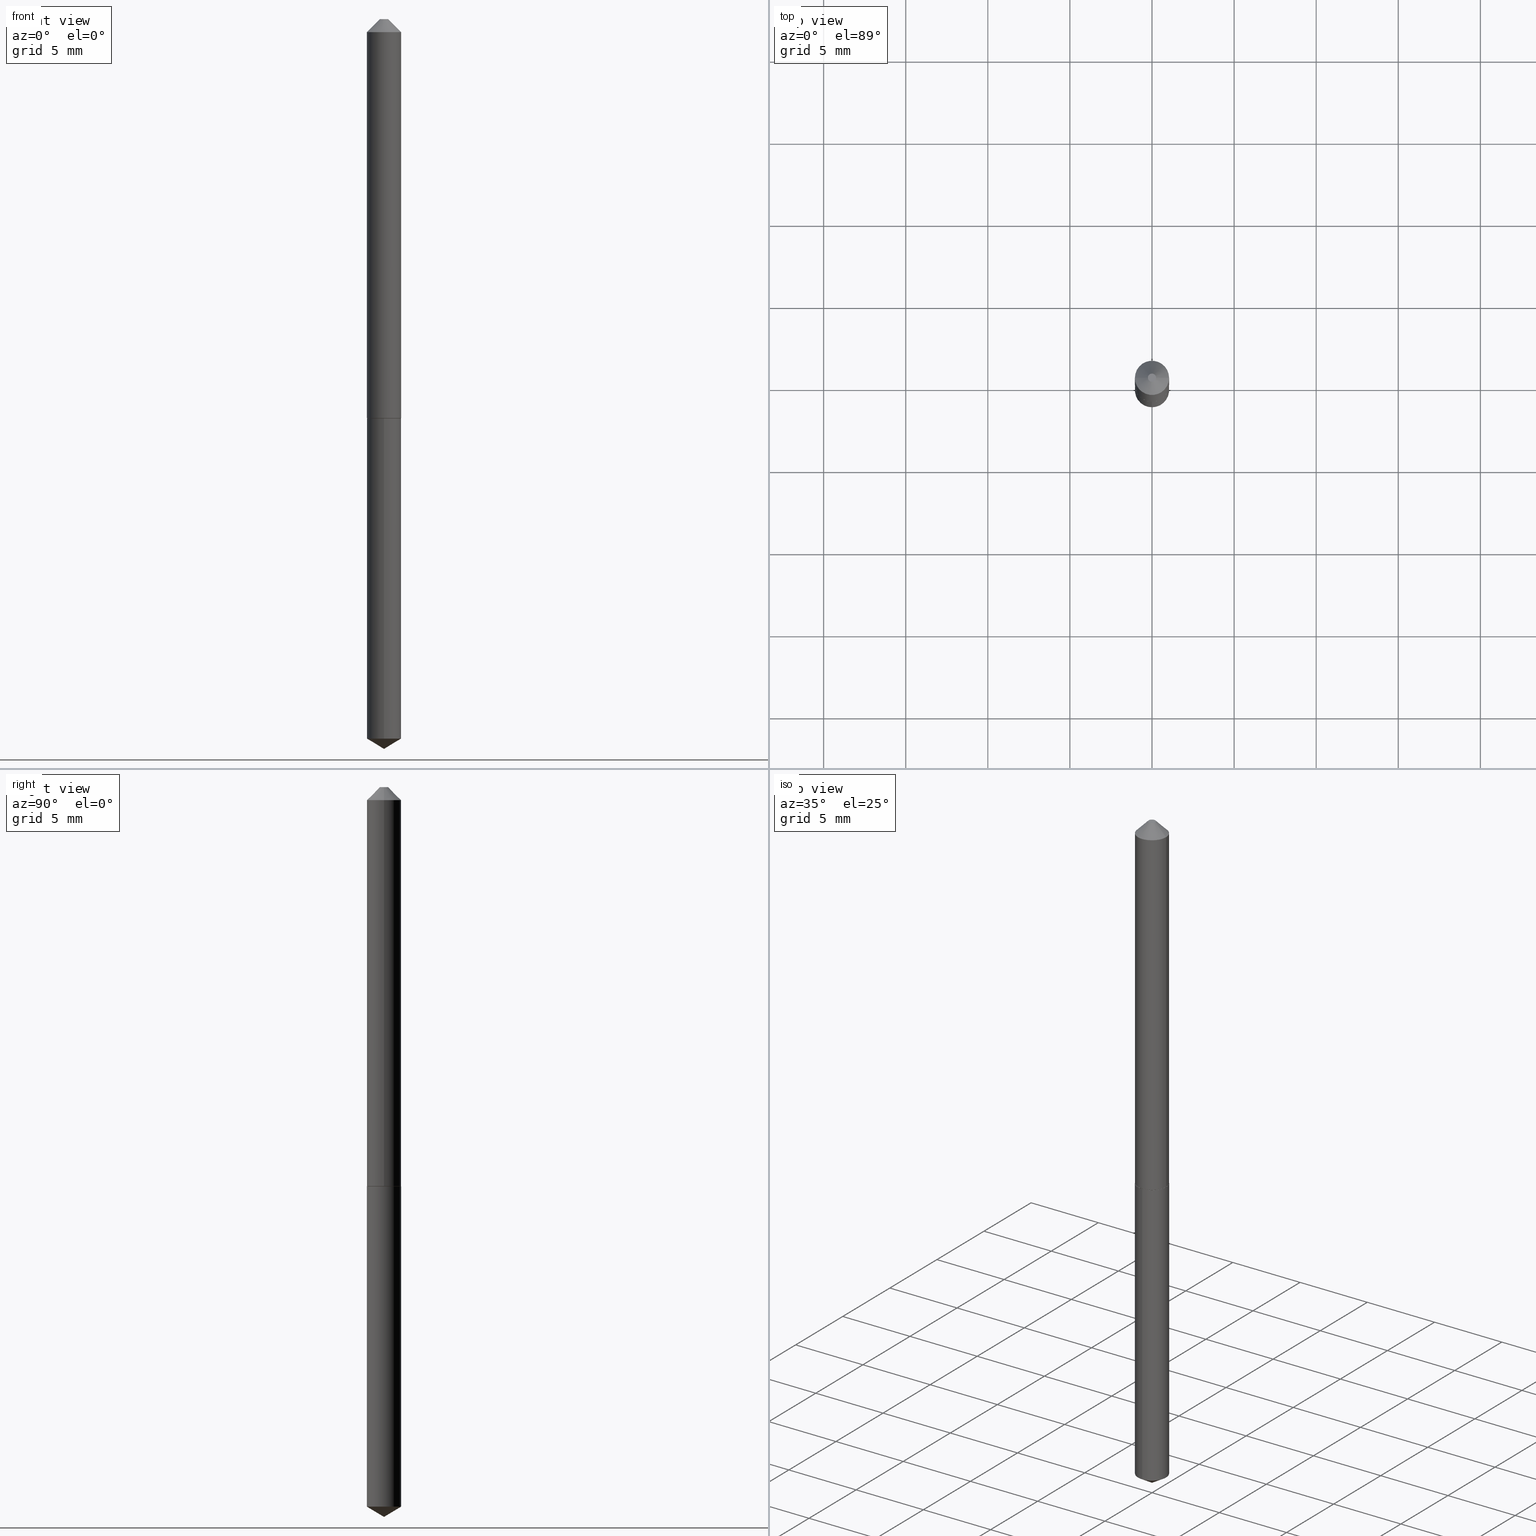
[diagram: canonical four-view strip — front | top / right | iso, engineering-drawing reading convention]
A machine part, canonical four-view strip (front | top / right | iso — engineering-drawing reading convention). The complete STEP part file that produces these views, byte-faithful:
ISO-10303-21;
HEADER;
FILE_DESCRIPTION (( 'STEP AP203' ),
    '1' );
FILE_NAME ('57116.STEP',
    '2024-04-22T22:24:12',
    ( '' ),
    ( '' ),
    'SwSTEP 2.0',
    'SolidWorks 2023',
    '' );
FILE_SCHEMA (( 'CONFIG_CONTROL_DESIGN' ));
ENDSEC;

DATA;
#1 = AXIS2_PLACEMENT_3D ( 'NONE', #53, #20, #314 ) ;
#2 = CALENDAR_DATE ( 2024, 22, 4 ) ;
#3 = ORIENTED_EDGE ( 'NONE', *, *, #105, .F. ) ;
#4 = DIRECTION ( 'NONE',  ( -2.445468806185136597E-29, 3.491481338843145583E-15, 1.000000000000000000 ) ) ;
#5 = EDGE_CURVE ( 'NONE', #100, #299, #18, .T. ) ;
#6 = EDGE_LOOP ( 'NONE', ( #208, #207, #28, #62 ) ) ;
#7 = VECTOR ( 'NONE', #42, 39.37007874015748143 ) ;
#8 = DIRECTION ( 'NONE',  ( 2.445381886799605414E-29, -3.491605812350369964E-15, -1.000000000000000000 ) ) ;
#9 = AXIS2_PLACEMENT_3D ( 'NONE', #56, #89, #271 ) ;
#10 = ORIENTED_EDGE ( 'NONE', *, *, #328, .T. ) ;
#11 = DIRECTION ( 'NONE',  ( 1.000000000000000000, -6.982962677686267499E-15, 0.000000000000000000 ) ) ;
#12 = DIRECTION ( 'NONE',  ( -2.445381886799605414E-29, 3.491605812350370359E-15, 1.000000000000000000 ) ) ;
#13 = CARTESIAN_POINT ( 'NONE',  ( -0.04100000000000007111, 2.913225216616415815E-16, -2.016763387004515092E-30 ) ) ;
#14 = DIRECTION ( 'NONE',  ( 1.000000000000000000, -6.982962677686267499E-15, 4.876158468089368575E-29 ) ) ;
#15 = ADVANCED_FACE ( 'NONE', ( #126 ), #318, .T. ) ;
#16 = DIRECTION ( 'NONE',  ( -2.445381886799605414E-29, 3.491605812350370359E-15, 1.000000000000000000 ) ) ;
#17 = LINE ( 'NONE', #54, #25 ) ;
#18 = CIRCLE ( 'NONE', #165, 0.04100000000000011968 ) ;
#19 = CC_DESIGN_APPROVAL ( #184, ( #118 ) ) ;
#20 = DIRECTION ( 'NONE',  ( -2.445381886799605414E-29, 3.491605812350370359E-15, 1.000000000000000000 ) ) ;
#21 = DIRECTION ( 'NONE',  ( -2.445381886799605414E-29, 3.491605812350370359E-15, 1.000000000000000000 ) ) ;
#22 = EDGE_CURVE ( 'NONE', #359, #30, #193, .T. ) ;
#23 = DIRECTION ( 'NONE',  ( -2.445381886799605414E-29, 3.491605812350370359E-15, 1.000000000000000000 ) ) ;
#24 = AXIS2_PLACEMENT_3D ( 'NONE', #264, #390, #337 ) ;
#25 = VECTOR ( 'NONE', #351, 39.37007874015748143 ) ;
#26 = MECHANICAL_CONTEXT ( 'NONE', #322, 'mechanical' ) ;
#27 = CARTESIAN_POINT ( 'NONE',  ( 7.642090019328601786E-31, -1.091087918388490144E-16, -0.03125000000000020123 ) ) ;
#28 = ORIENTED_EDGE ( 'NONE', *, *, #142, .F. ) ;
#29 =( LENGTH_UNIT ( ) NAMED_UNIT ( * ) SI_UNIT ( $, .METRE. ) );
#30 = VERTEX_POINT ( 'NONE', #352 ) ;
#31 = CIRCLE ( 'NONE', #1, 0.04100000000000000172 ) ;
#32 = PERSON_AND_ORGANIZATION ( #146, #294 ) ;
#33 = ORIENTED_EDGE ( 'NONE', *, *, #226, .F. ) ;
#34 = DATE_AND_TIME ( #305, #357 ) ;
#35 = EDGE_LOOP ( 'NONE', ( #238, #93, #174, #155 ) ) ;
#36 = LINE ( 'NONE', #220, #343 ) ;
#37 = EDGE_LOOP ( 'NONE', ( #103, #240, #330 ) ) ;
#38 = DATE_AND_TIME ( #49, #152 ) ;
#39 = CIRCLE ( 'NONE', #373, 0.04100000000000000172 ) ;
#40 = DIRECTION ( 'NONE',  ( -2.445381886799605134E-29, 3.491605812350369964E-15, 1.000000000000000000 ) ) ;
#41 = AXIS2_PLACEMENT_3D ( 'NONE', #380, #115, #225 ) ;
#42 = DIRECTION ( 'NONE',  ( -5.985567269335931024E-15, -0.8571673007021087809, 0.5150380749100601507 ) ) ;
#43 = DIRECTION ( 'NONE',  ( 2.438088387897960049E-29, -3.491481338843145188E-15, -1.000000000000000000 ) ) ;
#44 = DIRECTION ( 'NONE',  ( -1.000000000000000000, 6.982962677686265922E-15, -4.876176775795935793E-29 ) ) ;
#45 = AXIS2_PLACEMENT_3D ( 'NONE', #202, #320, #348 ) ;
#46 = CARTESIAN_POINT ( 'NONE',  ( 2.339090913116082767E-29, -3.339601900603468461E-15, -0.9564999999999999059 ) ) ;
#47 = SHAPE_DEFINITION_REPRESENTATION ( #159, #198 ) ;
#48 = DIRECTION ( 'NONE',  ( -1.000000000000000000, 6.982962677686267499E-15, 0.000000000000000000 ) ) ;
#49 = CALENDAR_DATE ( 2024, 22, 4 ) ;
#50 = EDGE_CURVE ( 'NONE', #236, #304, #222, .T. ) ;
#51 = PLANE ( 'NONE',  #76 ) ;
#52 = VERTEX_POINT ( 'NONE', #111 ) ;
#53 = CARTESIAN_POINT ( 'NONE',  ( 4.219258803106552970E-29, -6.024174344844561502E-15, -1.725364714619869844 ) ) ;
#54 = CARTESIAN_POINT ( 'NONE',  ( 0.04100000000000000866, -3.903892097474818411E-16, -0.03125000000000020123 ) ) ;
#55 = ORIENTED_EDGE ( 'NONE', *, *, #105, .T. ) ;
#56 = CARTESIAN_POINT ( 'NONE',  ( 0.000000000000000000, 0.000000000000000000, 0.000000000000000000 ) ) ;
#57 = CLOSED_SHELL ( 'NONE', ( #15, #358, #315, #300, #387, #210, #232, #156 ) ) ;
#58 = LOCAL_TIME ( 18, 24, 12.00000000000000000, #265 ) ;
#59 = DIRECTION ( 'NONE',  ( -2.445468806185136597E-29, 3.491481338843145583E-15, 1.000000000000000000 ) ) ;
#60 = ORIENTED_EDGE ( 'NONE', *, *, #148, .T. ) ;
#61 = DATE_AND_TIME ( #2, #303 ) ;
#62 = ORIENTED_EDGE ( 'NONE', *, *, #289, .F. ) ;
#63 = DESIGN_CONTEXT ( 'detailed design', #341, 'design' ) ;
#64 = CC_DESIGN_PERSON_AND_ORGANIZATION_ASSIGNMENT ( #32, #68, ( #118 ) ) ;
#65 = VERTEX_POINT ( 'NONE', #110 ) ;
#66 = CLOSED_SHELL ( 'NONE', ( #109, #309, #201, #382, #99 ) ) ;
#67 = AXIS2_PLACEMENT_3D ( 'NONE', #85, #23, #200 ) ;
#68 = PERSON_AND_ORGANIZATION_ROLE ( 'classification_officer' ) ;
#69 = ORIENTED_EDGE ( 'NONE', *, *, #138, .F. ) ;
#70 = ORIENTED_EDGE ( 'NONE', *, *, #79, .F. ) ;
#71 = DIRECTION ( 'NONE',  ( -2.445468806185136597E-29, 3.491481338843145583E-15, 1.000000000000000000 ) ) ;
#72 = EDGE_CURVE ( 'NONE', #214, #304, #279, .T. ) ;
#73 = EDGE_CURVE ( 'NONE', #91, #359, #36, .T. ) ;
#74 = VECTOR ( 'NONE', #77, 39.37007874015748143 ) ;
#75 = AXIS2_PLACEMENT_3D ( 'NONE', #381, #16, #136 ) ;
#76 = AXIS2_PLACEMENT_3D ( 'NONE', #169, #228, #196 ) ;
#77 = DIRECTION ( 'NONE',  ( -2.445468806185136877E-29, 3.491481338843145188E-15, 1.000000000000000000 ) ) ;
#78 = CYLINDRICAL_SURFACE ( 'NONE', #199, 0.04100000000000000172 ) ;
#79 = EDGE_CURVE ( 'NONE', #127, #52, #376, .T. ) ;
#80 = CARTESIAN_POINT ( 'NONE',  ( 0.04100000000000007111, -2.863014697851374814E-16, 1.999232478076336996E-30 ) ) ;
#81 = DIRECTION ( 'NONE',  ( 1.000000000000000000, -6.982962677686265922E-15, 0.000000000000000000 ) ) ;
#82 = ORIENTED_EDGE ( 'NONE', *, *, #190, .T. ) ;
#83 = DIRECTION ( 'NONE',  ( -2.445468806185136597E-29, 3.491481338843145583E-15, 1.000000000000000000 ) ) ;
#84 = EDGE_CURVE ( 'NONE', #127, #91, #221, .T. ) ;
#85 = CARTESIAN_POINT ( 'NONE',  ( 4.219258803106552970E-29, -6.024174344844561502E-15, -1.725364714619869844 ) ) ;
#86 = CIRCLE ( 'NONE', #302, 0.009750000000000003456 ) ;
#87 = AXIS2_PLACEMENT_3D ( 'NONE', #46, #117, #81 ) ;
#88 = CARTESIAN_POINT ( 'NONE',  ( 0.04100000000000000866, -3.954102616239860397E-16, -0.03125000000000020123 ) ) ;
#89 = DIRECTION ( 'NONE',  ( 0.000000000000000000, 0.000000000000000000, 1.000000000000000000 ) ) ;
#90 = EDGE_CURVE ( 'NONE', #230, #65, #275, .T. ) ;
#91 = VERTEX_POINT ( 'NONE', #130 ) ;
#92 = DIRECTION ( 'NONE',  ( 1.000000000000000000, -6.982962677686265922E-15, 0.000000000000000000 ) ) ;
#93 = ORIENTED_EDGE ( 'NONE', *, *, #226, .T. ) ;
#94 = AXIS2_PLACEMENT_3D ( 'NONE', #290, #21, #141 ) ;
#95 =( CONVERSION_BASED_UNIT ( 'INCH', #329 ) LENGTH_UNIT ( ) NAMED_UNIT ( #216 ) );
#96 = VERTEX_POINT ( 'NONE', #219 ) ;
#97 = PERSON_AND_ORGANIZATION_ROLE ( 'design_supplier' ) ;
#98 = ORIENTED_EDGE ( 'NONE', *, *, #281, .F. ) ;
#99 = ADVANCED_FACE ( 'NONE', ( #164 ), #244, .F. ) ;
#100 = VERTEX_POINT ( 'NONE', #370 ) ;
#101 = AXIS2_PLACEMENT_3D ( 'NONE', #354, #179, #296 ) ;
#102 = VECTOR ( 'NONE', #316, 39.37007874015748143 ) ;
#103 = ORIENTED_EDGE ( 'NONE', *, *, #84, .F. ) ;
#104 = LINE ( 'NONE', #13, #74 ) ;
#105 = EDGE_CURVE ( 'NONE', #304, #236, #160, .T. ) ;
#106 = DIRECTION ( 'NONE',  ( 1.000000000000000000, -6.982962677686267499E-15, 0.000000000000000000 ) ) ;
#107 = PRODUCT_DEFINITION_FORMATION_WITH_SPECIFIED_SOURCE ( 'ANY', '', #366, .NOT_KNOWN. ) ;
#108 = PLANE ( 'NONE',  #355 ) ;
#109 = ADVANCED_FACE ( 'NONE', ( #129 ), #78, .T. ) ;
#110 = CARTESIAN_POINT ( 'NONE',  ( 0.04050000000000015393, -3.624157629719184981E-15, -0.9569999999999999618 ) ) ;
#111 = CARTESIAN_POINT ( 'NONE',  ( -2.863014697850947350E-16, -0.04100000000000603856, -1.725364714619869400 ) ) ;
#112 = DIRECTION ( 'NONE',  ( -6.982962677686265133E-15, -1.000000000000000000, 3.468864327941622219E-15 ) ) ;
#113 = AXIS2_PLACEMENT_3D ( 'NONE', #217, #273, #157 ) ;
#114 = LOCAL_TIME ( 18, 24, 12.00000000000000000, #353 ) ;
#115 = DIRECTION ( 'NONE',  ( -2.445468806185136597E-29, 3.491481338843145583E-15, 1.000000000000000000 ) ) ;
#116 = FACE_OUTER_BOUND ( 'NONE', #268, .T. ) ;
#117 = DIRECTION ( 'NONE',  ( -2.445468806185136597E-29, 3.491481338843145583E-15, 1.000000000000000000 ) ) ;
#118 = SECURITY_CLASSIFICATION ( '', '', #301 ) ;
#119 = CC_DESIGN_DATE_AND_TIME_ASSIGNMENT ( #34, #365, ( #118 ) ) ;
#120 = CARTESIAN_POINT ( 'NONE',  ( -0.009750000000000003456, 1.226382820268645700E-16, 6.123233995670128542E-20 ) ) ;
#121 = PERSON_AND_ORGANIZATION ( #146, #294 ) ;
#122 = COORDINATED_UNIVERSAL_TIME_OFFSET ( 5, 0, .BEHIND. ) ;
#123 = EDGE_LOOP ( 'NONE', ( #82, #233 ) ) ;
#124 = PERSON_AND_ORGANIZATION ( #146, #294 ) ;
#125 = ORIENTED_EDGE ( 'NONE', *, *, #72, .T. ) ;
#126 = FACE_OUTER_BOUND ( 'NONE', #35, .T. ) ;
#127 = VERTEX_POINT ( 'NONE', #369 ) ;
#128 = AXIS2_PLACEMENT_3D ( 'NONE', #336, #135, #377 ) ;
#129 = FACE_OUTER_BOUND ( 'NONE', #6, .T. ) ;
#130 = CARTESIAN_POINT ( 'NONE',  ( 2.913225216616833911E-16, 0.04099999999999398570, -1.725364714619870066 ) ) ;
#131 = DIRECTION ( 'NONE',  ( 6.090539988449768180E-15, 0.8571673007021123336, 0.5150380749100541555 ) ) ;
#132 = AXIS2_PLACEMENT_3D ( 'NONE', #340, #338, #106 ) ;
#133 = CARTESIAN_POINT ( 'NONE',  ( -1.497417772954669407E-48, 2.137915722948495711E-34, 6.123233995736790996E-20 ) ) ;
#134 = MANIFOLD_SOLID_BREP ( 'Body-Move/Copy2[2]', #57 ) ;
#135 = DIRECTION ( 'NONE',  ( -2.445468806185136597E-29, 3.491481338843145583E-15, 1.000000000000000000 ) ) ;
#136 = DIRECTION ( 'NONE',  ( -6.982962677686265133E-15, -1.000000000000000000, 3.468864327941622219E-15 ) ) ;
#137 = CYLINDRICAL_SURFACE ( 'NONE', #260, 0.04100000000000007111 ) ;
#138 = EDGE_CURVE ( 'NONE', #299, #304, #104, .T. ) ;
#139 = CC_DESIGN_APPROVAL ( #334, ( #107 ) ) ;
#140 = DIRECTION ( 'NONE',  ( -2.445381886799605134E-29, 3.491605812350369964E-15, 1.000000000000000000 ) ) ;
#141 = DIRECTION ( 'NONE',  ( -6.982962677686266711E-15, -1.000000000000000000, 3.331521943493003704E-15 ) ) ;
#142 = EDGE_CURVE ( 'NONE', #30, #359, #39, .T. ) ;
#143 = FACE_OUTER_BOUND ( 'NONE', #308, .T. ) ;
#144 = CONICAL_SURFACE ( 'NONE', #384, 0.04100000000000000866, 0.7853981633974452814 ) ;
#145 = CALENDAR_DATE ( 2024, 22, 4 ) ;
#146 = PERSON ( 'UNSPECIFIED', 'UNSPECIFIED', 'UNSPECIFIED', ('UNSPECIFIED'), ('UNSPECIFIED'), ('UNSPECIFIED') ) ;
#147 = ORIENTED_EDGE ( 'NONE', *, *, #374, .F. ) ;
#148 = EDGE_CURVE ( 'NONE', #230, #299, #243, .T. ) ;
#149 = DATE_AND_TIME ( #145, #114 ) ;
#150 = ORIENTED_EDGE ( 'NONE', *, *, #50, .F. ) ;
#151 = VECTOR ( 'NONE', #311, 39.37007874015748143 ) ;
#152 = LOCAL_TIME ( 18, 24, 12.00000000000000000, #213 ) ;
#153 = ORIENTED_EDGE ( 'NONE', *, *, #289, .T. ) ;
#154 =( NAMED_UNIT ( * ) PLANE_ANGLE_UNIT ( ) SI_UNIT ( $, .RADIAN. ) );
#155 = ORIENTED_EDGE ( 'NONE', *, *, #72, .F. ) ;
#156 = ADVANCED_FACE ( 'NONE', ( #186 ), #108, .F. ) ;
#157 = DIRECTION ( 'NONE',  ( 1.000000000000000000, -6.982962677686269866E-15, 0.000000000000000000 ) ) ;
#158 = EDGE_LOOP ( 'NONE', ( #69, #211, #187, #3 ) ) ;
#159 = PRODUCT_DEFINITION_SHAPE ( 'NONE', 'NONE',  #321 ) ;
#160 = CIRCLE ( 'NONE', #132, 0.04100000000000000866 ) ;
#161 = CONICAL_SURFACE ( 'NONE', #75, 65.52281426576790579, 1.029744258676650981 ) ;
#162 = CARTESIAN_POINT ( 'NONE',  ( 4.279586124416522292E-29, -6.110071929320319764E-15, -1.750000000000000000 ) ) ;
#163 = CARTESIAN_POINT ( 'NONE',  ( 2.340313647519175568E-29, -3.341347641272889965E-15, -0.9569999999999999618 ) ) ;
#164 = FACE_OUTER_BOUND ( 'NONE', #323, .T. ) ;
#165 = AXIS2_PLACEMENT_3D ( 'NONE', #270, #4, #326 ) ;
#166 = DIRECTION ( 'NONE',  ( -2.445381886799605414E-29, 3.491605812350370359E-15, 1.000000000000000000 ) ) ;
#167 = FACE_OUTER_BOUND ( 'NONE', #272, .T. ) ;
#168 = DIRECTION ( 'NONE',  ( -2.445381886799605414E-29, 3.491605812350370359E-15, 1.000000000000000000 ) ) ;
#169 = CARTESIAN_POINT ( 'NONE',  ( 2.340313647519175568E-29, -3.341347641272889965E-15, -0.9569999999999999618 ) ) ;
#170 = ORIENTED_EDGE ( 'NONE', *, *, #298, .F. ) ;
#171 = CYLINDRICAL_SURFACE ( 'NONE', #94, 0.04100000000000000172 ) ;
#172 = DIRECTION ( 'NONE',  ( -2.445468806185136597E-29, 3.491481338843145583E-15, 1.000000000000000000 ) ) ;
#173 = EDGE_CURVE ( 'NONE', #96, #214, #86, .T. ) ;
#174 = ORIENTED_EDGE ( 'NONE', *, *, #50, .T. ) ;
#175 =( NAMED_UNIT ( * ) SI_UNIT ( $, .STERADIAN. ) SOLID_ANGLE_UNIT ( ) );
#176 = VECTOR ( 'NONE', #131, 39.37007874015748143 ) ;
#177 = VECTOR ( 'NONE', #140, 39.37007874015748143 ) ;
#178 = APPROVAL_STATUS ( 'not_yet_approved' ) ;
#179 = DIRECTION ( 'NONE',  ( 2.445468806185136597E-29, -3.491481338843145583E-15, -1.000000000000000000 ) ) ;
#180 = ORIENTED_EDGE ( 'NONE', *, *, #339, .F. ) ;
#181 = PERSON_AND_ORGANIZATION ( #146, #294 ) ;
#182 = ORIENTED_EDGE ( 'NONE', *, *, #218, .F. ) ;
#183 = COORDINATED_UNIVERSAL_TIME_OFFSET ( 5, 0, .BEHIND. ) ;
#184 = APPROVAL ( #277, 'UNSPECIFIED' ) ;
#185 = ORIENTED_EDGE ( 'NONE', *, *, #84, .T. ) ;
#186 = FACE_OUTER_BOUND ( 'NONE', #123, .T. ) ;
#187 = ORIENTED_EDGE ( 'NONE', *, *, #281, .T. ) ;
#188 = APPROVAL_PERSON_ORGANIZATION ( #284, #184, #333 ) ;
#189 = DIRECTION ( 'NONE',  ( 6.982962677686265922E-15, 1.000000000000000000, -3.491605812350369964E-15 ) ) ;
#190 = EDGE_CURVE ( 'NONE', #214, #96, #349, .T. ) ;
#191 = CARTESIAN_POINT ( 'NONE',  ( 2.340313647519175568E-29, -3.341347641272889965E-15, -0.9569999999999999618 ) ) ;
#192 = DIRECTION ( 'NONE',  ( -6.982962677686266711E-15, -1.000000000000000000, 3.331521943493003704E-15 ) ) ;
#193 = CIRCLE ( 'NONE', #24, 0.04100000000000000172 ) ;
#194 = CONICAL_SURFACE ( 'NONE', #367, 65.52281426576790579, 1.029744258676650981 ) ;
#195 = FACE_OUTER_BOUND ( 'NONE', #274, .T. ) ;
#196 = DIRECTION ( 'NONE',  ( 1.000000000000000000, -6.982962677686265922E-15, 4.876176775795935793E-29 ) ) ;
#197 = CARTESIAN_POINT ( 'NONE',  ( -0.04050000000000015393, -3.050928606115937538E-15, -0.9569999999999999618 ) ) ;
#198 = ADVANCED_BREP_SHAPE_REPRESENTATION ( '57116', ( #389, #134, #9 ), #212 ) ;
#199 = AXIS2_PLACEMENT_3D ( 'NONE', #163, #12, #245 ) ;
#200 = DIRECTION ( 'NONE',  ( -6.982962677686266711E-15, -1.000000000000000000, 6.663043886986007407E-15 ) ) ;
#201 = ADVANCED_FACE ( 'NONE', ( #342 ), #194, .T. ) ;
#202 = CARTESIAN_POINT ( 'NONE',  ( 2.339090913116082767E-29, -3.339601900603468461E-15, -0.9564999999999999059 ) ) ;
#203 = FACE_OUTER_BOUND ( 'NONE', #306, .T. ) ;
#204 = APPROVAL_ROLE ( '' ) ;
#205 = VECTOR ( 'NONE', #258, 39.37007874015748143 ) ;
#206 = ORIENTED_EDGE ( 'NONE', *, *, #138, .T. ) ;
#207 = ORIENTED_EDGE ( 'NONE', *, *, #73, .T. ) ;
#208 = ORIENTED_EDGE ( 'NONE', *, *, #374, .T. ) ;
#209 = PERSON_AND_ORGANIZATION_ROLE ( 'design_owner' ) ;
#210 = ADVANCED_FACE ( 'NONE', ( #385 ), #137, .T. ) ;
#211 = ORIENTED_EDGE ( 'NONE', *, *, #298, .T. ) ;
#212 =( GEOMETRIC_REPRESENTATION_CONTEXT ( 3 ) GLOBAL_UNCERTAINTY_ASSIGNED_CONTEXT ( ( #257 ) ) GLOBAL_UNIT_ASSIGNED_CONTEXT ( ( #95, #154, #175 ) ) REPRESENTATION_CONTEXT ( 'NONE', 'WORKASPACE' ) );
#213 = COORDINATED_UNIVERSAL_TIME_OFFSET ( 5, 0, .BEHIND. ) ;
#214 = VERTEX_POINT ( 'NONE', #120 ) ;
#215 = DIRECTION ( 'NONE',  ( -2.445468806185136597E-29, 3.491481338843145583E-15, 1.000000000000000000 ) ) ;
#216 = DIMENSIONAL_EXPONENTS ( 1.000000000000000000, 0.000000000000000000, 0.000000000000000000, 0.000000000000000000, 0.000000000000000000, 0.000000000000000000, 0.000000000000000000 ) ;
#217 = CARTESIAN_POINT ( 'NONE',  ( 2.340313647519175568E-29, -3.341347641272889965E-15, -0.9569999999999999618 ) ) ;
#218 = EDGE_CURVE ( 'NONE', #65, #100, #378, .T. ) ;
#219 = CARTESIAN_POINT ( 'NONE',  ( 0.009750000000000003456, -2.286395326128772087E-16, 6.123233995840463805E-20 ) ) ;
#220 = CARTESIAN_POINT ( 'NONE',  ( 2.913225216616644584E-16, 0.04099999999999666411, -0.9570000000000000728 ) ) ;
#221 = LINE ( 'NONE', #162, #176 ) ;
#222 = CIRCLE ( 'NONE', #242, 0.04100000000000000866 ) ;
#223 = CARTESIAN_POINT ( 'NONE',  ( 0.04100000000000011968, -3.625903370388606485E-15, -0.9564999999999999059 ) ) ;
#224 = CARTESIAN_POINT ( 'NONE',  ( -0.04100000000000011968, -3.048279378941826732E-15, -0.9564999999999999059 ) ) ;
#225 = DIRECTION ( 'NONE',  ( 1.000000000000000000, -6.982962677686268288E-15, 4.876176775795935232E-29 ) ) ;
#226 = EDGE_CURVE ( 'NONE', #96, #236, #17, .T. ) ;
#227 = ORIENTED_EDGE ( 'NONE', *, *, #73, .F. ) ;
#228 = DIRECTION ( 'NONE',  ( -2.438088387897960049E-29, 3.491481338843145188E-15, 1.000000000000000000 ) ) ;
#229 = CARTESIAN_POINT ( 'NONE',  ( 0.000000000000000000, 0.000000000000000000, 0.000000000000000000 ) ) ;
#230 = VERTEX_POINT ( 'NONE', #197 ) ;
#231 = PERSON_AND_ORGANIZATION_ROLE ( 'creator' ) ;
#232 = ADVANCED_FACE ( 'NONE', ( #283 ), #144, .T. ) ;
#233 = ORIENTED_EDGE ( 'NONE', *, *, #173, .T. ) ;
#234 = APPROVAL_DATE_TIME ( #61, #334 ) ;
#235 = CC_DESIGN_SECURITY_CLASSIFICATION ( #118, ( #107 ) ) ;
#236 = VERTEX_POINT ( 'NONE', #88 ) ;
#237 = PERSON_AND_ORGANIZATION_ROLE ( 'creator' ) ;
#238 = ORIENTED_EDGE ( 'NONE', *, *, #173, .F. ) ;
#239 = APPROVAL_DATE_TIME ( #297, #360 ) ;
#240 = ORIENTED_EDGE ( 'NONE', *, *, #79, .T. ) ;
#241 = ORIENTED_EDGE ( 'NONE', *, *, #22, .T. ) ;
#242 = AXIS2_PLACEMENT_3D ( 'NONE', #27, #71, #11 ) ;
#243 = LINE ( 'NONE', #372, #246 ) ;
#244 = PLANE ( 'NONE',  #324 ) ;
#245 = DIRECTION ( 'NONE',  ( -6.982962677686266711E-15, -1.000000000000000000, 3.331521943493003704E-15 ) ) ;
#246 = VECTOR ( 'NONE', #280, 39.37007874015748143 ) ;
#247 = CIRCLE ( 'NONE', #276, 0.04050000000000015393 ) ;
#248 = CARTESIAN_POINT ( 'NONE',  ( 2.340313647519175568E-29, -3.341347641272889965E-15, -0.9569999999999999618 ) ) ;
#249 = CC_DESIGN_PERSON_AND_ORGANIZATION_ASSIGNMENT ( #361, #97, ( #107 ) ) ;
#250 = CARTESIAN_POINT ( 'NONE',  ( -0.04100000000000000866, 1.771926779462880356E-16, -0.03125000000000020123 ) ) ;
#251 = FACE_OUTER_BOUND ( 'NONE', #317, .T. ) ;
#252 = CONICAL_SURFACE ( 'NONE', #45, 0.04100000000000011968, 0.7853981633973801113 ) ;
#253 = CARTESIAN_POINT ( 'NONE',  ( 2.340313647519175568E-29, -3.341347641272889965E-15, -0.9569999999999999618 ) ) ;
#254 = PRODUCT_RELATED_PRODUCT_CATEGORY ( 'detail', '', ( #366 ) ) ;
#255 = DIRECTION ( 'NONE',  ( 1.000000000000000000, -6.982962677686269866E-15, 0.000000000000000000 ) ) ;
#256 = ORIENTED_EDGE ( 'NONE', *, *, #218, .T. ) ;
#257 = UNCERTAINTY_MEASURE_WITH_UNIT (LENGTH_MEASURE( 1.000000000000000082E-05 ), #95, 'distance_accuracy_value', 'NONE');
#258 = DIRECTION ( 'NONE',  ( 0.7071067811864992780, -2.468850131081751401E-15, 0.7071067811865957564 ) ) ;
#259 = CARTESIAN_POINT ( 'NONE',  ( 7.642090019328601786E-31, -1.091087918388490144E-16, -0.03125000000000020123 ) ) ;
#260 = AXIS2_PLACEMENT_3D ( 'NONE', #229, #83, #285 ) ;
#261 = APPLICATION_PROTOCOL_DEFINITION ( 'international standard', 'config_control_design', 1994, #341 ) ;
#262 = ORIENTED_EDGE ( 'NONE', *, *, #148, .F. ) ;
#263 = APPROVAL_STATUS ( 'not_yet_approved' ) ;
#264 = CARTESIAN_POINT ( 'NONE',  ( 2.340313647519175568E-29, -3.341347641272889965E-15, -0.9569999999999999618 ) ) ;
#265 = COORDINATED_UNIVERSAL_TIME_OFFSET ( 5, 0, .BEHIND. ) ;
#266 = APPROVAL_PERSON_ORGANIZATION ( #121, #360, #204 ) ;
#267 = CC_DESIGN_DATE_AND_TIME_ASSIGNMENT ( #149, #331, ( #321 ) ) ;
#268 = EDGE_LOOP ( 'NONE', ( #335, #206, #150, #98 ) ) ;
#269 = CALENDAR_DATE ( 2024, 22, 4 ) ;
#270 = CARTESIAN_POINT ( 'NONE',  ( 2.339090913116082767E-29, -3.339601900603468461E-15, -0.9564999999999999059 ) ) ;
#271 = DIRECTION ( 'NONE',  ( 1.000000000000000000, 0.000000000000000000, 0.000000000000000000 ) ) ;
#272 = EDGE_LOOP ( 'NONE', ( #70, #185, #147 ) ) ;
#273 = DIRECTION ( 'NONE',  ( -2.445468806185136597E-29, 3.491481338843145583E-15, 1.000000000000000000 ) ) ;
#274 = EDGE_LOOP ( 'NONE', ( #180, #364 ) ) ;
#275 = CIRCLE ( 'NONE', #113, 0.04050000000000015393 ) ;
#276 = AXIS2_PLACEMENT_3D ( 'NONE', #253, #172, #255 ) ;
#277 = APPROVAL_STATUS ( 'not_yet_approved' ) ;
#278 = CC_DESIGN_PERSON_AND_ORGANIZATION_ASSIGNMENT ( #295, #231, ( #321 ) ) ;
#279 = LINE ( 'NONE', #250, #151 ) ;
#280 = DIRECTION ( 'NONE',  ( -0.7071067811864992780, 7.493145998870180611E-15, 0.7071067811865957564 ) ) ;
#281 = EDGE_CURVE ( 'NONE', #100, #236, #319, .T. ) ;
#282 = CC_DESIGN_APPROVAL ( #360, ( #321 ) ) ;
#283 = FACE_OUTER_BOUND ( 'NONE', #332, .T. ) ;
#284 = PERSON_AND_ORGANIZATION ( #146, #294 ) ;
#285 = DIRECTION ( 'NONE',  ( 1.000000000000000000, -6.982962677686268288E-15, 4.876176775795935232E-29 ) ) ;
#286 = AXIS2_PLACEMENT_3D ( 'NONE', #356, #59, #92 ) ;
#287 = CONICAL_SURFACE ( 'NONE', #286, 0.04100000000000011968, 0.7853981633973801113 ) ;
#288 = DIRECTION ( 'NONE',  ( 2.445468806185136597E-29, -3.491481338843145583E-15, -1.000000000000000000 ) ) ;
#289 = EDGE_CURVE ( 'NONE', #52, #30, #383, .T. ) ;
#290 = CARTESIAN_POINT ( 'NONE',  ( 2.340313647519175568E-29, -3.341347641272889965E-15, -0.9569999999999999618 ) ) ;
#291 = CARTESIAN_POINT ( 'NONE',  ( 2.913225216616833911E-16, 0.04099999999999666411, -0.9570000000000000728 ) ) ;
#292 = ORIENTED_EDGE ( 'NONE', *, *, #22, .F. ) ;
#293 = APPLICATION_PROTOCOL_DEFINITION ( 'international standard', 'config_control_design', 1994, #322 ) ;
#294 = ORGANIZATION ( 'UNSPECIFIED', 'UNSPECIFIED', '' ) ;
#295 = PERSON_AND_ORGANIZATION ( #146, #294 ) ;
#296 = DIRECTION ( 'NONE',  ( -1.000000000000000000, 6.982962677686267499E-15, 0.000000000000000000 ) ) ;
#297 = DATE_AND_TIME ( #269, #58 ) ;
#298 = EDGE_CURVE ( 'NONE', #299, #100, #375, .T. ) ;
#299 = VERTEX_POINT ( 'NONE', #224 ) ;
#300 = ADVANCED_FACE ( 'NONE', ( #195 ), #51, .F. ) ;
#301 = SECURITY_CLASSIFICATION_LEVEL ( 'unclassified' ) ;
#302 = AXIS2_PLACEMENT_3D ( 'NONE', #133, #215, #14 ) ;
#303 = LOCAL_TIME ( 18, 24, 12.00000000000000000, #122 ) ;
#304 = VERTEX_POINT ( 'NONE', #313 ) ;
#305 = CALENDAR_DATE ( 2024, 22, 4 ) ;
#306 = EDGE_LOOP ( 'NONE', ( #262, #362, #256, #170 ) ) ;
#307 = CARTESIAN_POINT ( 'NONE',  ( -9.199537594930407422E-28, 1.313546047113588880E-13, 37.62007874015748143 ) ) ;
#308 = EDGE_LOOP ( 'NONE', ( #227, #10, #153, #292 ) ) ;
#309 = ADVANCED_FACE ( 'NONE', ( #167 ), #161, .T. ) ;
#310 = CARTESIAN_POINT ( 'NONE',  ( 4.279418301899308424E-29, -6.110310171613148423E-15, -1.750000000000000000 ) ) ;
#311 = DIRECTION ( 'NONE',  ( -0.7071067811865453523, 2.468850131082234184E-15, -0.7071067811865496822 ) ) ;
#312 = CARTESIAN_POINT ( 'NONE',  ( -7.487088864773347035E-49, 1.068957861474247856E-34, 3.061616997868395498E-20 ) ) ;
#313 = CARTESIAN_POINT ( 'NONE',  ( -0.04100000000000000866, -1.433032824559516263E-15, -0.03125000000000020123 ) ) ;
#314 = DIRECTION ( 'NONE',  ( -6.982962677686266711E-15, -1.000000000000000000, 6.663043886986007407E-15 ) ) ;
#315 = ADVANCED_FACE ( 'NONE', ( #251 ), #252, .T. ) ;
#316 = DIRECTION ( 'NONE',  ( -2.445468806185136877E-29, 3.491481338843145188E-15, 1.000000000000000000 ) ) ;
#317 = EDGE_LOOP ( 'NONE', ( #345, #60, #386, #182 ) ) ;
#318 = CONICAL_SURFACE ( 'NONE', #101, 0.04100000000000000866, 0.7853981633974452814 ) ;
#319 = LINE ( 'NONE', #80, #102 ) ;
#320 = DIRECTION ( 'NONE',  ( -2.445468806185136597E-29, 3.491481338843145583E-15, 1.000000000000000000 ) ) ;
#321 = PRODUCT_DEFINITION ( 'UNKNOWN', '', #107, #63 ) ;
#322 = APPLICATION_CONTEXT ( 'configuration controlled 3d designs of mechanical parts and assemblies' ) ;
#323 = EDGE_LOOP ( 'NONE', ( #368, #241 ) ) ;
#324 = AXIS2_PLACEMENT_3D ( 'NONE', #248, #8, #189 ) ;
#325 = CIRCLE ( 'NONE', #67, 0.04100000000000000172 ) ;
#326 = DIRECTION ( 'NONE',  ( 1.000000000000000000, -6.982962677686265922E-15, 0.000000000000000000 ) ) ;
#327 = ORIENTED_EDGE ( 'NONE', *, *, #190, .F. ) ;
#328 = EDGE_CURVE ( 'NONE', #91, #52, #31, .T. ) ;
#329 = LENGTH_MEASURE_WITH_UNIT ( LENGTH_MEASURE( 0.02539999999999999897 ), #29 );
#330 = ORIENTED_EDGE ( 'NONE', *, *, #328, .F. ) ;
#331 = DATE_TIME_ROLE ( 'creation_date' ) ;
#332 = EDGE_LOOP ( 'NONE', ( #33, #327, #125, #55 ) ) ;
#333 = APPROVAL_ROLE ( '' ) ;
#334 = APPROVAL ( #263, 'UNSPECIFIED' ) ;
#335 = ORIENTED_EDGE ( 'NONE', *, *, #5, .T. ) ;
#336 = CARTESIAN_POINT ( 'NONE',  ( -1.497417772954669407E-48, 2.137915722948495711E-34, 6.123233995736790996E-20 ) ) ;
#337 = DIRECTION ( 'NONE',  ( -6.982962677686266711E-15, -1.000000000000000000, 3.331521943493003704E-15 ) ) ;
#338 = DIRECTION ( 'NONE',  ( -2.445468806185136597E-29, 3.491481338843145583E-15, 1.000000000000000000 ) ) ;
#339 = EDGE_CURVE ( 'NONE', #65, #230, #247, .T. ) ;
#340 = CARTESIAN_POINT ( 'NONE',  ( 7.642090019328601786E-31, -1.091087918388490144E-16, -0.03125000000000020123 ) ) ;
#341 = APPLICATION_CONTEXT ( 'configuration controlled 3d designs of mechanical parts and assemblies' ) ;
#342 = FACE_OUTER_BOUND ( 'NONE', #37, .T. ) ;
#343 = VECTOR ( 'NONE', #40, 39.37007874015748143 ) ;
#344 = CARTESIAN_POINT ( 'NONE',  ( -2.863014697851135198E-16, -0.04100000000000333933, -0.9569999999999997398 ) ) ;
#345 = ORIENTED_EDGE ( 'NONE', *, *, #339, .T. ) ;
#346 = APPROVAL_DATE_TIME ( #38, #184 ) ;
#347 = CYLINDRICAL_SURFACE ( 'NONE', #41, 0.04100000000000007111 ) ;
#348 = DIRECTION ( 'NONE',  ( 1.000000000000000000, -6.982962677686265922E-15, 0.000000000000000000 ) ) ;
#349 = CIRCLE ( 'NONE', #128, 0.009750000000000003456 ) ;
#350 = CC_DESIGN_PERSON_AND_ORGANIZATION_ASSIGNMENT ( #124, #237, ( #107 ) ) ;
#351 = DIRECTION ( 'NONE',  ( 0.7071067811865453523, -7.319954787623248157E-15, -0.7071067811865496822 ) ) ;
#352 = CARTESIAN_POINT ( 'NONE',  ( -2.863014697851135198E-16, -0.04100000000000333933, -0.9569999999999997398 ) ) ;
#353 = COORDINATED_UNIVERSAL_TIME_OFFSET ( 5, 0, .BEHIND. ) ;
#354 = CARTESIAN_POINT ( 'NONE',  ( 7.642090019328601786E-31, -1.091087918388490144E-16, -0.03125000000000020123 ) ) ;
#355 = AXIS2_PLACEMENT_3D ( 'NONE', #312, #43, #44 ) ;
#356 = CARTESIAN_POINT ( 'NONE',  ( 2.339090913116082767E-29, -3.339601900603468461E-15, -0.9564999999999999059 ) ) ;
#357 = LOCAL_TIME ( 18, 24, 12.00000000000000000, #183 ) ;
#358 = ADVANCED_FACE ( 'NONE', ( #116 ), #347, .T. ) ;
#359 = VERTEX_POINT ( 'NONE', #291 ) ;
#360 = APPROVAL ( #178, 'UNSPECIFIED' ) ;
#361 = PERSON_AND_ORGANIZATION ( #146, #294 ) ;
#362 = ORIENTED_EDGE ( 'NONE', *, *, #90, .T. ) ;
#363 = PERSON_AND_ORGANIZATION ( #146, #294 ) ;
#364 = ORIENTED_EDGE ( 'NONE', *, *, #90, .F. ) ;
#365 = DATE_TIME_ROLE ( 'classification_date' ) ;
#366 = PRODUCT ( '57116', '57116', '', ( #26 ) ) ;
#367 = AXIS2_PLACEMENT_3D ( 'NONE', #307, #168, #112 ) ;
#368 = ORIENTED_EDGE ( 'NONE', *, *, #142, .T. ) ;
#369 = CARTESIAN_POINT ( 'NONE',  ( 4.279418301899308424E-29, -6.110310171613147634E-15, -1.750000000000000000 ) ) ;
#370 = CARTESIAN_POINT ( 'NONE',  ( 0.04100000000000011968, -3.625903370388606485E-15, -0.9564999999999999059 ) ) ;
#371 = CC_DESIGN_PERSON_AND_ORGANIZATION_ASSIGNMENT ( #363, #209, ( #366 ) ) ;
#372 = CARTESIAN_POINT ( 'NONE',  ( -0.04100000000000011968, -3.048279378941826732E-15, -0.9564999999999999059 ) ) ;
#373 = AXIS2_PLACEMENT_3D ( 'NONE', #191, #166, #192 ) ;
#374 = EDGE_CURVE ( 'NONE', #52, #91, #325, .T. ) ;
#375 = CIRCLE ( 'NONE', #87, 0.04100000000000011968 ) ;
#376 = LINE ( 'NONE', #310, #7 ) ;
#377 = DIRECTION ( 'NONE',  ( 1.000000000000000000, -6.982962677686267499E-15, 4.876158468089368575E-29 ) ) ;
#378 = LINE ( 'NONE', #223, #205 ) ;
#379 = APPROVAL_PERSON_ORGANIZATION ( #181, #334, #388 ) ;
#380 = CARTESIAN_POINT ( 'NONE',  ( 0.000000000000000000, 0.000000000000000000, 0.000000000000000000 ) ) ;
#381 = CARTESIAN_POINT ( 'NONE',  ( -9.199537594930407422E-28, 1.313546047113588880E-13, 37.62007874015748143 ) ) ;
#382 = ADVANCED_FACE ( 'NONE', ( #143 ), #171, .T. ) ;
#383 = LINE ( 'NONE', #344, #177 ) ;
#384 = AXIS2_PLACEMENT_3D ( 'NONE', #259, #288, #48 ) ;
#385 = FACE_OUTER_BOUND ( 'NONE', #158, .T. ) ;
#386 = ORIENTED_EDGE ( 'NONE', *, *, #5, .F. ) ;
#387 = ADVANCED_FACE ( 'NONE', ( #203 ), #287, .T. ) ;
#388 = APPROVAL_ROLE ( '' ) ;
#389 = MANIFOLD_SOLID_BREP ( 'Body-Move/Copy2[1]', #66 ) ;
#390 = DIRECTION ( 'NONE',  ( -2.445381886799605414E-29, 3.491605812350370359E-15, 1.000000000000000000 ) ) ;
ENDSEC;
END-ISO-10303-21;
